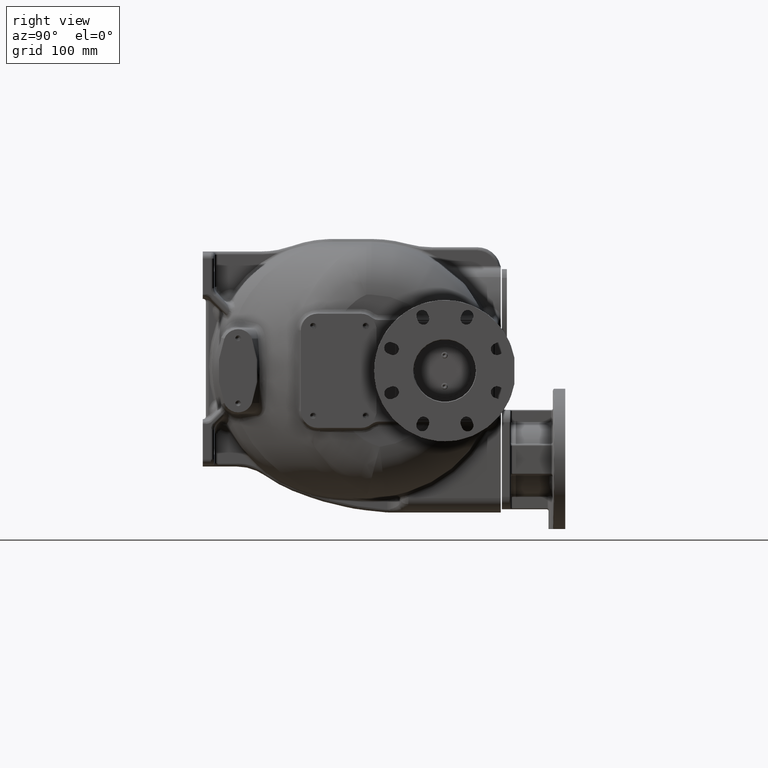
[diagram: clean part render]
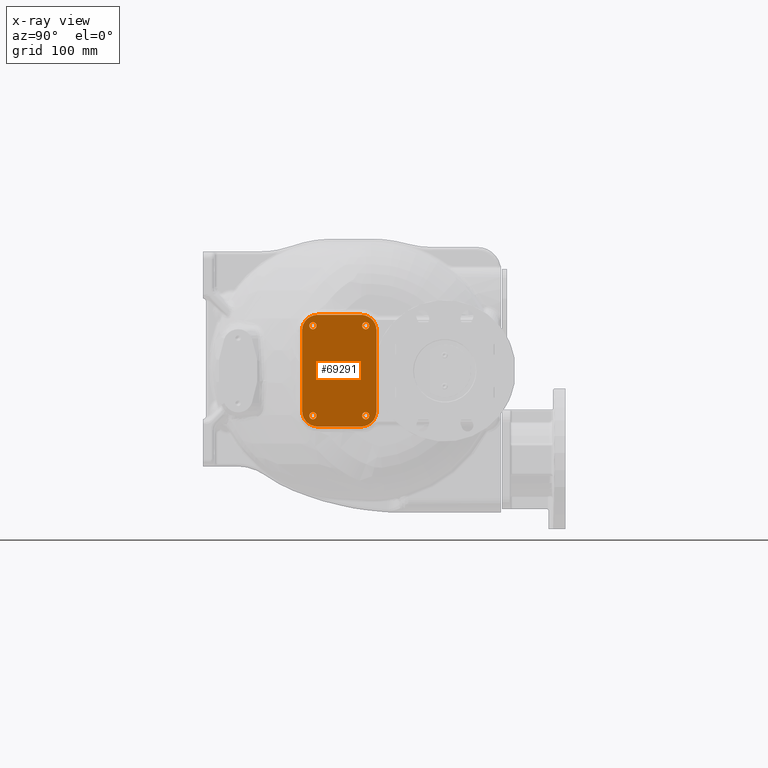
[diagram: x-ray — body ghosted, one internal face saturated and labeled with its STEP entity id]
A machine part, right view, then the same camera in x-ray: the body is ghosted and one INTERNAL B-rep face — a face not visible from any outside direction — is saturated and labeled: STEP entity #69291.
In plain terms, the highlighted planar face has unit normal (1, 0, 0).
Its self-contained STEP definition (entity closure, byte-faithful):
#68920=CARTESIAN_POINT('',(1.77E2,2.55E2,2.7E1));
#68921=DIRECTION('',(1.E0,0.E0,0.E0));
#68922=DIRECTION('',(0.E0,1.E0,0.E0));
#68923=AXIS2_PLACEMENT_3D('',#68920,#68921,#68922);
#68925=DIRECTION('',(0.E0,-1.E0,0.E0));
#68926=VECTOR('',#68925,7.E1);
#68927=CARTESIAN_POINT('',(1.77E2,2.55E2,5.2E1));
#68928=LINE('',#68927,#68926);
#68929=CARTESIAN_POINT('',(1.77E2,1.85E2,2.7E1));
#68930=DIRECTION('',(1.E0,0.E0,0.E0));
#68931=DIRECTION('',(0.E0,0.E0,1.E0));
#68932=AXIS2_PLACEMENT_3D('',#68929,#68930,#68931);
#68934=DIRECTION('',(0.E0,0.E0,-1.E0));
#68935=VECTOR('',#68934,1.3E2);
#68936=CARTESIAN_POINT('',(1.77E2,1.6E2,2.7E1));
#68937=LINE('',#68936,#68935);
#68938=CARTESIAN_POINT('',(1.77E2,1.85E2,-1.03E2));
#68939=DIRECTION('',(1.E0,0.E0,0.E0));
#68940=DIRECTION('',(0.E0,-1.E0,0.E0));
#68941=AXIS2_PLACEMENT_3D('',#68938,#68939,#68940);
#68943=DIRECTION('',(0.E0,1.E0,0.E0));
#68944=VECTOR('',#68943,7.E1);
#68945=CARTESIAN_POINT('',(1.77E2,1.85E2,-1.28E2));
#68946=LINE('',#68945,#68944);
#68947=CARTESIAN_POINT('',(1.77E2,2.55E2,-1.03E2));
#68948=DIRECTION('',(1.E0,0.E0,0.E0));
#68949=DIRECTION('',(0.E0,0.E0,-1.E0));
#68950=AXIS2_PLACEMENT_3D('',#68947,#68948,#68949);
#68952=DIRECTION('',(0.E0,0.E0,1.E0));
#68953=VECTOR('',#68952,1.3E2);
#68954=CARTESIAN_POINT('',(1.77E2,2.8E2,-1.03E2));
#68955=LINE('',#68954,#68953);
#68956=CARTESIAN_POINT('',(1.77E2,2.625E2,-1.105E2));
#68957=DIRECTION('',(-1.E0,0.E0,0.E0));
#68958=DIRECTION('',(0.E0,0.E0,-1.E0));
#68959=AXIS2_PLACEMENT_3D('',#68956,#68957,#68958);
#68961=CARTESIAN_POINT('',(1.77E2,2.625E2,-1.105E2));
#68962=DIRECTION('',(-1.E0,0.E0,0.E0));
#68963=DIRECTION('',(0.E0,0.E0,1.E0));
#68964=AXIS2_PLACEMENT_3D('',#68961,#68962,#68963);
#68966=CARTESIAN_POINT('',(1.77E2,1.775E2,-1.105E2));
#68967=DIRECTION('',(-1.E0,0.E0,0.E0));
#68968=DIRECTION('',(0.E0,0.E0,-1.E0));
#68969=AXIS2_PLACEMENT_3D('',#68966,#68967,#68968);
#68971=CARTESIAN_POINT('',(1.77E2,1.775E2,-1.105E2));
#68972=DIRECTION('',(-1.E0,0.E0,0.E0));
#68973=DIRECTION('',(0.E0,0.E0,1.E0));
#68974=AXIS2_PLACEMENT_3D('',#68971,#68972,#68973);
#68976=CARTESIAN_POINT('',(1.77E2,2.625E2,3.45E1));
#68977=DIRECTION('',(-1.E0,0.E0,0.E0));
#68978=DIRECTION('',(0.E0,0.E0,-1.E0));
#68979=AXIS2_PLACEMENT_3D('',#68976,#68977,#68978);
#68981=CARTESIAN_POINT('',(1.77E2,2.625E2,3.45E1));
#68982=DIRECTION('',(-1.E0,0.E0,0.E0));
#68983=DIRECTION('',(0.E0,0.E0,1.E0));
#68984=AXIS2_PLACEMENT_3D('',#68981,#68982,#68983);
#68986=CARTESIAN_POINT('',(1.77E2,1.775E2,3.45E1));
#68987=DIRECTION('',(-1.E0,0.E0,0.E0));
#68988=DIRECTION('',(0.E0,0.E0,-1.E0));
#68989=AXIS2_PLACEMENT_3D('',#68986,#68987,#68988);
#68991=CARTESIAN_POINT('',(1.77E2,1.775E2,3.45E1));
#68992=DIRECTION('',(-1.E0,0.E0,0.E0));
#68993=DIRECTION('',(0.E0,0.E0,1.E0));
#68994=AXIS2_PLACEMENT_3D('',#68991,#68992,#68993);
#69060=CARTESIAN_POINT('',(1.77E2,2.625E2,-1.1625E2));
#69061=CARTESIAN_POINT('',(1.77E2,2.625E2,-1.0475E2));
#69062=VERTEX_POINT('',#69060);
#69063=VERTEX_POINT('',#69061);
#69064=CARTESIAN_POINT('',(1.77E2,1.775E2,-1.1625E2));
#69065=CARTESIAN_POINT('',(1.77E2,1.775E2,-1.0475E2));
#69066=VERTEX_POINT('',#69064);
#69067=VERTEX_POINT('',#69065);
#69068=CARTESIAN_POINT('',(1.77E2,2.625E2,2.875E1));
#69069=CARTESIAN_POINT('',(1.77E2,2.625E2,4.025E1));
#69070=VERTEX_POINT('',#69068);
#69071=VERTEX_POINT('',#69069);
#69072=CARTESIAN_POINT('',(1.77E2,1.775E2,2.875E1));
#69073=CARTESIAN_POINT('',(1.77E2,1.775E2,4.025E1));
#69074=VERTEX_POINT('',#69072);
#69075=VERTEX_POINT('',#69073);
#69076=CARTESIAN_POINT('',(1.77E2,2.8E2,2.7E1));
#69077=CARTESIAN_POINT('',(1.77E2,2.55E2,5.2E1));
#69078=VERTEX_POINT('',#69076);
#69079=VERTEX_POINT('',#69077);
#69080=CARTESIAN_POINT('',(1.77E2,1.85E2,5.2E1));
#69081=VERTEX_POINT('',#69080);
#69082=CARTESIAN_POINT('',(1.77E2,1.6E2,2.7E1));
#69083=VERTEX_POINT('',#69082);
#69084=CARTESIAN_POINT('',(1.77E2,1.6E2,-1.03E2));
#69085=VERTEX_POINT('',#69084);
#69086=CARTESIAN_POINT('',(1.77E2,1.85E2,-1.28E2));
#69087=VERTEX_POINT('',#69086);
#69088=CARTESIAN_POINT('',(1.77E2,2.55E2,-1.28E2));
#69089=VERTEX_POINT('',#69088);
#69090=CARTESIAN_POINT('',(1.77E2,2.8E2,-1.03E2));
#69091=VERTEX_POINT('',#69090);
#69252=CARTESIAN_POINT('',(1.77E2,2.2E2,-3.8E1));
#69253=DIRECTION('',(1.E0,0.E0,0.E0));
#69254=DIRECTION('',(0.E0,0.E0,-1.E0));
#69255=AXIS2_PLACEMENT_3D('',#69252,#69253,#69254);
#69256=PLANE('',#69255);
#69257=ORIENTED_EDGE('',*,*,#69163,.T.);
#69258=ORIENTED_EDGE('',*,*,#69177,.T.);
#69259=ORIENTED_EDGE('',*,*,#69191,.T.);
#69260=ORIENTED_EDGE('',*,*,#69205,.T.);
#69261=ORIENTED_EDGE('',*,*,#69219,.T.);
#69262=ORIENTED_EDGE('',*,*,#69233,.T.);
#69263=ORIENTED_EDGE('',*,*,#69246,.T.);
#69264=ORIENTED_EDGE('',*,*,#69101,.T.);
#69265=EDGE_LOOP('',(#69257,#69258,#69259,#69260,#69261,#69262,#69263,#69264));
#69266=FACE_OUTER_BOUND('',#69265,.F.);
#69268=ORIENTED_EDGE('',*,*,#69267,.T.);
#69270=ORIENTED_EDGE('',*,*,#69269,.T.);
#69271=EDGE_LOOP('',(#69268,#69270));
#69272=FACE_BOUND('',#69271,.F.);
#69274=ORIENTED_EDGE('',*,*,#69273,.T.);
#69276=ORIENTED_EDGE('',*,*,#69275,.T.);
#69277=EDGE_LOOP('',(#69274,#69276));
#69278=FACE_BOUND('',#69277,.F.);
#69280=ORIENTED_EDGE('',*,*,#69279,.T.);
#69282=ORIENTED_EDGE('',*,*,#69281,.T.);
#69283=EDGE_LOOP('',(#69280,#69282));
#69284=FACE_BOUND('',#69283,.F.);
#69286=ORIENTED_EDGE('',*,*,#69285,.T.);
#69288=ORIENTED_EDGE('',*,*,#69287,.T.);
#69289=EDGE_LOOP('',(#69286,#69288));
#69290=FACE_BOUND('',#69289,.F.);
#69291=ADVANCED_FACE('',(#69266,#69272,#69278,#69284,#69290),#69256,.F.);
#68924=CIRCLE('',#68923,2.5E1);
#68933=CIRCLE('',#68932,2.5E1);
#68942=CIRCLE('',#68941,2.5E1);
#68951=CIRCLE('',#68950,2.5E1);
#68960=CIRCLE('',#68959,5.75E0);
#68965=CIRCLE('',#68964,5.75E0);
#68970=CIRCLE('',#68969,5.75E0);
#68975=CIRCLE('',#68974,5.75E0);
#68980=CIRCLE('',#68979,5.75E0);
#68985=CIRCLE('',#68984,5.75E0);
#68990=CIRCLE('',#68989,5.75E0);
#68995=CIRCLE('',#68994,5.75E0);
#69101=EDGE_CURVE('',#69091,#69078,#68955,.T.);
#69163=EDGE_CURVE('',#69078,#69079,#68924,.T.);
#69177=EDGE_CURVE('',#69079,#69081,#68928,.T.);
#69191=EDGE_CURVE('',#69081,#69083,#68933,.T.);
#69205=EDGE_CURVE('',#69083,#69085,#68937,.T.);
#69219=EDGE_CURVE('',#69085,#69087,#68942,.T.);
#69233=EDGE_CURVE('',#69087,#69089,#68946,.T.);
#69246=EDGE_CURVE('',#69089,#69091,#68951,.T.);
#69267=EDGE_CURVE('',#69062,#69063,#68960,.T.);
#69269=EDGE_CURVE('',#69063,#69062,#68965,.T.);
#69273=EDGE_CURVE('',#69066,#69067,#68970,.T.);
#69275=EDGE_CURVE('',#69067,#69066,#68975,.T.);
#69279=EDGE_CURVE('',#69070,#69071,#68980,.T.);
#69281=EDGE_CURVE('',#69071,#69070,#68985,.T.);
#69285=EDGE_CURVE('',#69074,#69075,#68990,.T.);
#69287=EDGE_CURVE('',#69075,#69074,#68995,.T.);